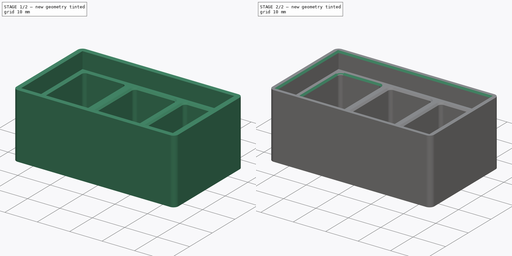
[diagram: build sequence overview — one tinted view per stage of 2, left to right]
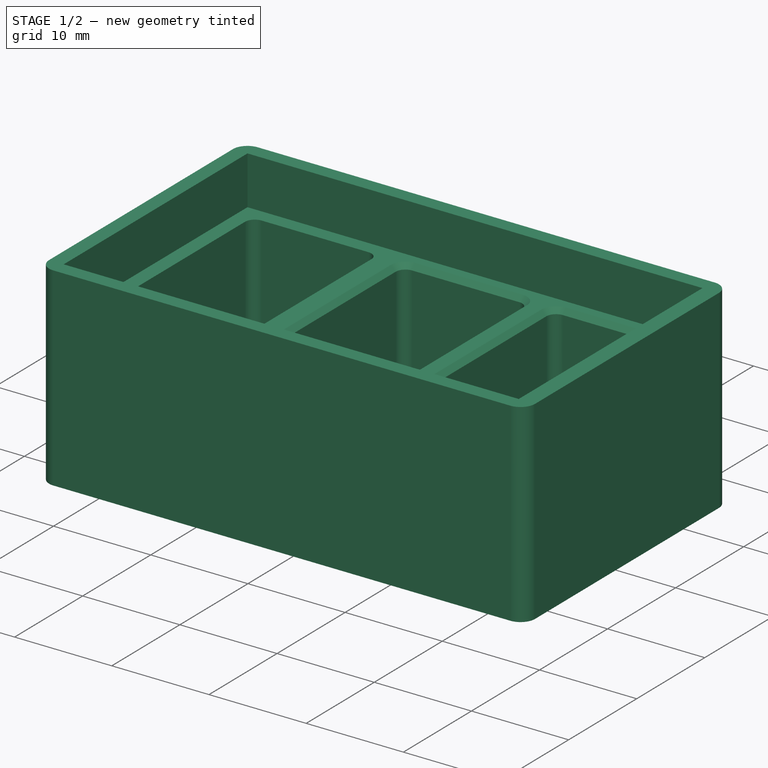
[diagram: stage 1 of 2 — iso view after this stage's code; geometry added in this stage tinted green]
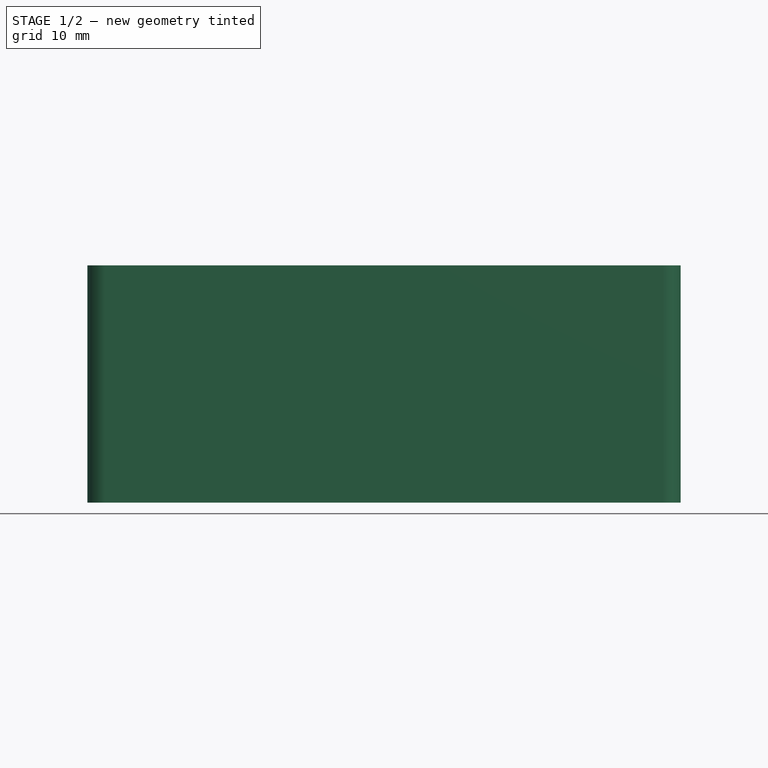
[diagram: stage 1 of 2 — front view after this stage's code; geometry added in this stage tinted green]
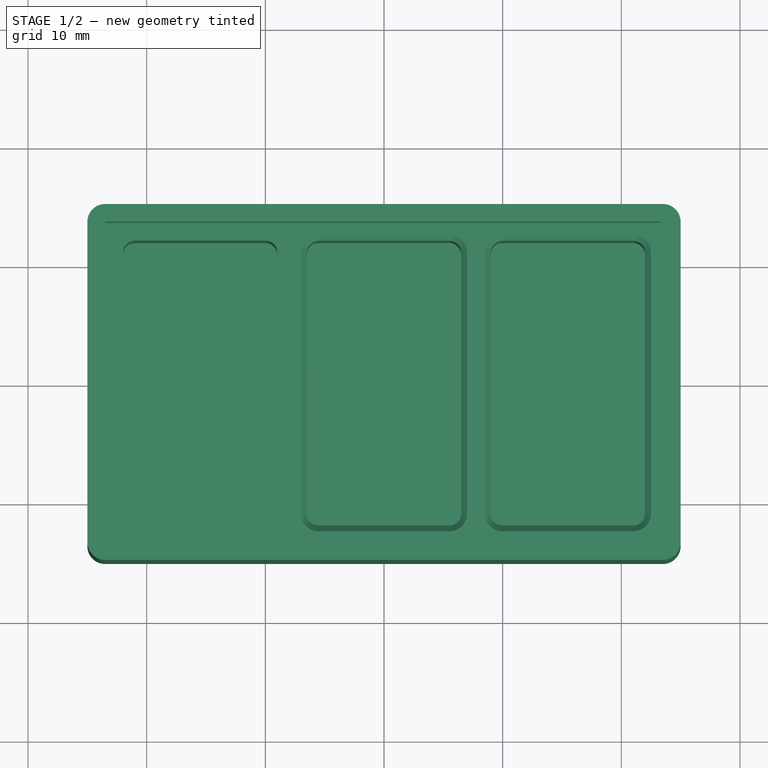
[diagram: stage 1 of 2 — top view after this stage's code; geometry added in this stage tinted green]
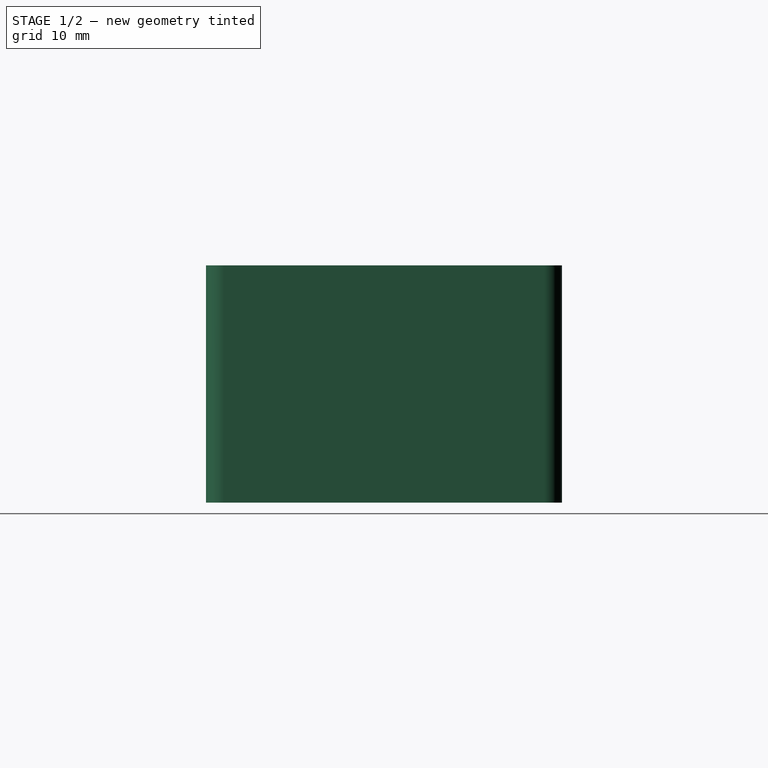
[diagram: stage 1 of 2 — right view after this stage's code; geometry added in this stage tinted green]
FCSTD DOCUMENT  (FreeCAD 0.17R13541 (Git))
Label: pilulesBas
License: All rights reserved
LicenseURL: http://en.wikipedia.org/wiki/All_rights_reserved
objects: Sketcher::SketchObject×5, PartDesign::Chamfer×4, PartDesign::Pad×2, PartDesign::Pocket×2, Part::Fillet×2, PartDesign::Body×1, PartDesign::Mirrored×1, PartDesign::FeatureBase×1
note: 22 computed .brp shape members not serialized (recipe doc carries the construction recipe); baked Part::Feature solids carry a one-line shape summary decoded from their .brp

FEATURE [Sketcher::SketchObject] Sketch
  MapMode = 5
  Support = -> [XY_Plane]
  sketch-geometry (4):
    g0: LineSegment StartX=-25 StartY=15 StartZ=0 EndX=25 EndY=15 EndZ=0
    g1: LineSegment StartX=25 StartY=15 StartZ=0 EndX=25 EndY=-15 EndZ=0
    g2: LineSegment StartX=25 StartY=-15 StartZ=0 EndX=-25 EndY=-15 EndZ=0
    g3: LineSegment StartX=-25 StartY=-15 StartZ=0 EndX=-25 EndY=15 EndZ=0
  constraints (12):
    c: Coincident(g0,g1)
    c: Coincident(g1,g2)
    c: Coincident(g2,g3)
    c: Coincident(g3,g0)
    c: Horizontal(g0)
    c: Horizontal(g2)
    c: Vertical(g1)
    c: Vertical(g3)
    c: DistanceX(g0,g0) = 50
    c: DistanceY(g1,g1) = 30
    c: Symmetric(g0,g0,g-2)
    c: Symmetric(g0,g2,g-1)
FEATURE [Sketcher::SketchObject] Sketch002
  MapMode = 5
  Support = -> [XY_Plane]
FEATURE [PartDesign::Body] Body
  BaseFeature = -> Fillet001
  Group = -> [BaseFeature,Sketch,Pad,Sketch001,Pocket,Sketch002,Sketch003,Pocket001,Sketch004,Pad001,Mirrored,Chamfer,Chamfer001,Chamfer002,Chamfer003]
  Origin = -> Origin
  Tip = -> Chamfer003
FEATURE [PartDesign::Pad] Pad
  BaseFeature = -> BaseFeature
  Length = 20
  Length2 = 100
  Profile = -> Sketch
  Type = 0
FEATURE [Sketcher::SketchObject] Sketch001
  ExternalGeometry = -> [Pad]
  MapMode = 5
  Placement = pos=(0,0,0) rot=(1,0,0;3.14159rad)
  Support = -> [Pad]
  sketch-geometry (12):
    g0: LineSegment StartX=-22 StartY=12 StartZ=0 EndX=22 EndY=12 EndZ=0
    g1: LineSegment StartX=22 StartY=12 StartZ=0 EndX=22 EndY=-12 EndZ=0
    g2: LineSegment StartX=22 StartY=-12 StartZ=0 EndX=-22 EndY=-12 EndZ=0
    g3: LineSegment StartX=-22 StartY=-12 StartZ=0 EndX=-22 EndY=12 EndZ=0
    g4: GeomPoint X=-22 Y=0 Z=0
    g5: GeomPoint X=-25 Y=0 Z=0
    g6: GeomPoint X=0 Y=12 Z=0
    g7: GeomPoint X=22 Y=0 Z=0
    g8: GeomPoint X=0 Y=-12 Z=0
    g9: GeomPoint X=0 Y=15 Z=0
    g10: GeomPoint X=25 Y=0 Z=0
    g11: GeomPoint X=0 Y=-15 Z=0
  constraints (28):
    c: Coincident(g0,g1)
    c: Coincident(g1,g2)
    c: Coincident(g2,g3)
    c: Coincident(g3,g0)
    c: Horizontal(g0)
    c: Horizontal(g2)
    c: Vertical(g1)
    c: Vertical(g3)
    c: PointOnObject(g4,g3)
    c: PointOnObject(g4,g-1)
    c: PointOnObject(g5,g-3)
    c: PointOnObject(g5,g-1)
    c: DistanceX(g5,g4) = 3
    c: PointOnObject(g6,g-2)
    c: PointOnObject(g7,g1)
    c: PointOnObject(g8,g2)
    c: PointOnObject(g9,g-4)
    c: PointOnObject(g10,g-5)
    c: PointOnObject(g11,g-6)
    c: PointOnObject(g9,g-2)
    c: PointOnObject(g6,g0)
    c: PointOnObject(g10,g-1)
    c: PointOnObject(g7,g-1)
    c: PointOnObject(g11,g-2)
    c: PointOnObject(g8,g-2)
    c: DistanceX(g7,g10) = 3
    c: DistanceY(g6,g9) = 3
    c: DistanceY(g11,g8) = 3
FEATURE [PartDesign::Pocket] Pocket
  BaseFeature = -> Pad
  Length = 17
  Length2 = 100
  Profile = -> Sketch001
  Type = 0
FEATURE [Sketcher::SketchObject] Sketch003
  ExternalGeometry = -> [Pocket]
  MapMode = 5
  Placement = pos=(-25,0,0) rot=(0.57735,-0.57735,-0.57735;2.0944rad)
  Support = -> [Pocket]
  sketch-geometry (12):
    g0: LineSegment StartX=-23.5 StartY=13.5 StartZ=0 EndX=23.3158 EndY=13.5 EndZ=0
    g1: LineSegment StartX=23.3158 StartY=13.5 StartZ=0 EndX=23.3158 EndY=-13.5 EndZ=0
    g2: LineSegment StartX=23.3158 StartY=-13.5 StartZ=0 EndX=-23.5 EndY=-13.5 EndZ=0
    g3: LineSegment StartX=-23.5 StartY=-13.5 StartZ=0 EndX=-23.5 EndY=13.5 EndZ=0
    g4: GeomPoint X=0 Y=13.5 Z=0
    g5: GeomPoint X=0 Y=15 Z=0
    g6: GeomPoint X=-23.5 Y=0 Z=0
    g7: GeomPoint X=-25 Y=0 Z=0
    g8: GeomPoint X=0 Y=-13.5 Z=0
    g9: GeomPoint X=0.003964 Y=-15 Z=0
    g10: GeomPoint X=23.5 Y=0 Z=0
    g11: GeomPoint X=25 Y=0 Z=0
  constraints (26):
    c: Coincident(g0,g1)
    c: Coincident(g1,g2)
    c: Coincident(g2,g3)
    c: Coincident(g3,g0)
    c: Horizontal(g0)
    c: Horizontal(g2)
    c: Vertical(g1)
    c: Vertical(g3)
    c: PointOnObject(g4,g0)
    c: PointOnObject(g5,g-2)
    c: PointOnObject(g6,g3)
    c: PointOnObject(g7,g-1)
    c: PointOnObject(g8,g2)
    c: PointOnObject(g11,g-1)
    c: PointOnObject(g4,g-2)
    c: PointOnObject(g5,g-3)
    c: PointOnObject(g11,g-4)
    c: PointOnObject(g10,g-1)
    c: PointOnObject(g8,g-2)
    c: PointOnObject(g9,g-5)
    c: PointOnObject(g6,g-1)
    c: PointOnObject(g7,g-6)
    c: DistanceY(g4,g5) = 1.5
    c: DistanceY(g9,g8) = 1.5
    c: DistanceX(g10,g11) = 1.5
    c: DistanceX(g7,g6) = 1.5
FEATURE [PartDesign::Pocket] Pocket001
  BaseFeature = -> Pocket
  Length = 5
  Length2 = 100
  Profile = -> Sketch003
  Type = 0
FEATURE [Sketcher::SketchObject] Sketch004
  ExternalGeometry = -> [Pocket001]
  MapMode = 5
  Placement = pos=(0,15,0) rot=(0,0.707107,0.707107;3.14159rad)
  Support = -> [Pocket001]
  sketch-geometry (4):
    g0: LineSegment StartX=36.5 StartY=12 StartZ=0 EndX=39 EndY=12 EndZ=0
    g1: LineSegment StartX=39 StartY=12 StartZ=0 EndX=39 EndY=20 EndZ=0
    g2: LineSegment StartX=39 StartY=20 StartZ=0 EndX=36.5 EndY=20 EndZ=0
    g3: LineSegment StartX=36.5 StartY=20 StartZ=0 EndX=36.5 EndY=12 EndZ=0
  constraints (12):
    c: Coincident(g0,g1)
    c: Coincident(g1,g2)
    c: Coincident(g2,g3)
    c: Coincident(g3,g0)
    c: Horizontal(g0)
    c: Horizontal(g2)
    c: Vertical(g1)
    c: Vertical(g3)
    c: DistanceX(g0,g0) = 2.5
    c: PointOnObject(g1,g-3)
    c: PointOnObject(g0,g-5)
    c: DistanceX(g-4,g2) = 13
FEATURE [PartDesign::Pad] Pad001
  BaseFeature = -> Pocket001
  Length = 12
  Length2 = 100
  Profile = -> Sketch004
  Type = 0
FEATURE [PartDesign::Mirrored] Mirrored
  BaseFeature = -> Pad001
  MirrorPlane = -> Sketch004 [V_Axis]
  Originals = -> [Pad001]
FEATURE [Part::Fillet] Fillet
  Base = -> Mirrored
  Edges = 4 edges r=1.5: [Edge1,Edge2,Edge5,Edge8]
FEATURE [Part::Fillet] Fillet001
  Base = -> Fillet
  Edges = 12 edges r=1: [Edge49,Edge51,Edge53,Edge57,Edge58,Edge60,Edge63,Edge65,Edge66,Edge68,Edge69,Edge71]
FEATURE [PartDesign::FeatureBase] BaseFeature
  BaseFeature = -> Fillet001
FEATURE [PartDesign::Chamfer] Chamfer
  Base = -> BaseFeature [Edge24]
  BaseFeature = -> BaseFeature
  Size = 0.5
FEATURE [PartDesign::Chamfer] Chamfer001
  Base = -> Chamfer [Edge33]
  BaseFeature = -> Chamfer
  Size = 0.5
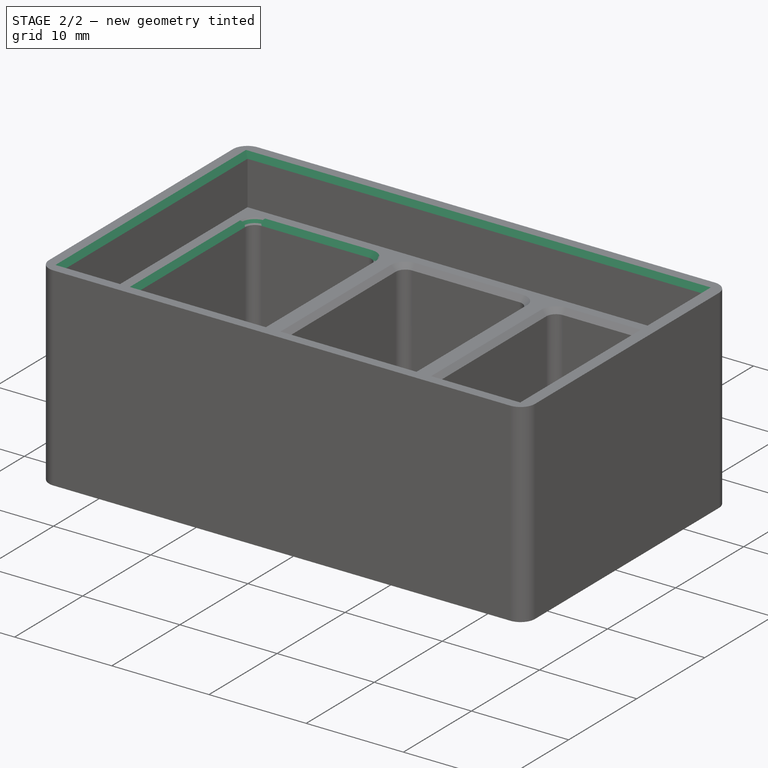
[diagram: stage 2 of 2 — iso view after this stage's code; geometry added in this stage tinted green]
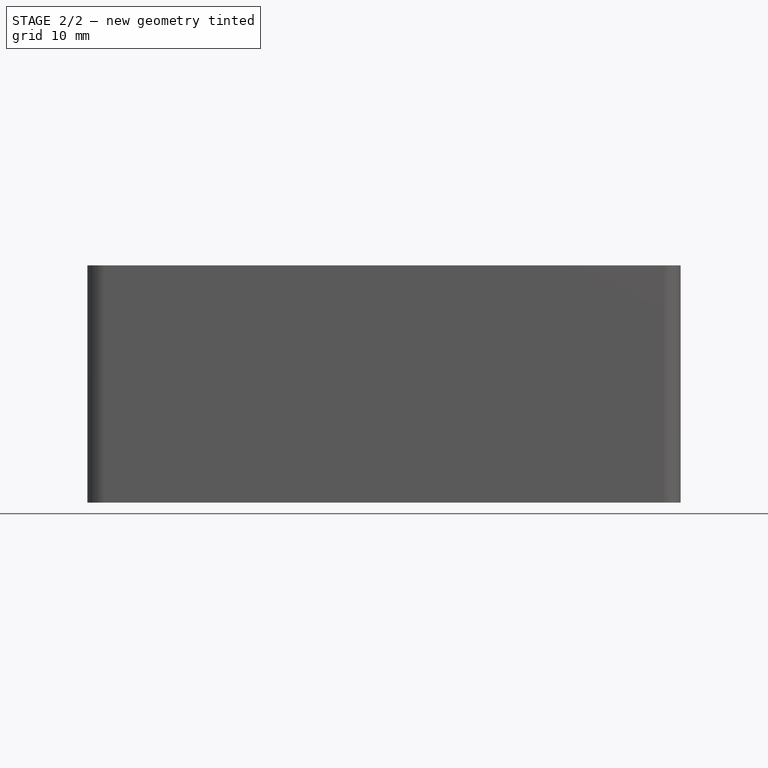
[diagram: stage 2 of 2 — front view after this stage's code; geometry added in this stage tinted green]
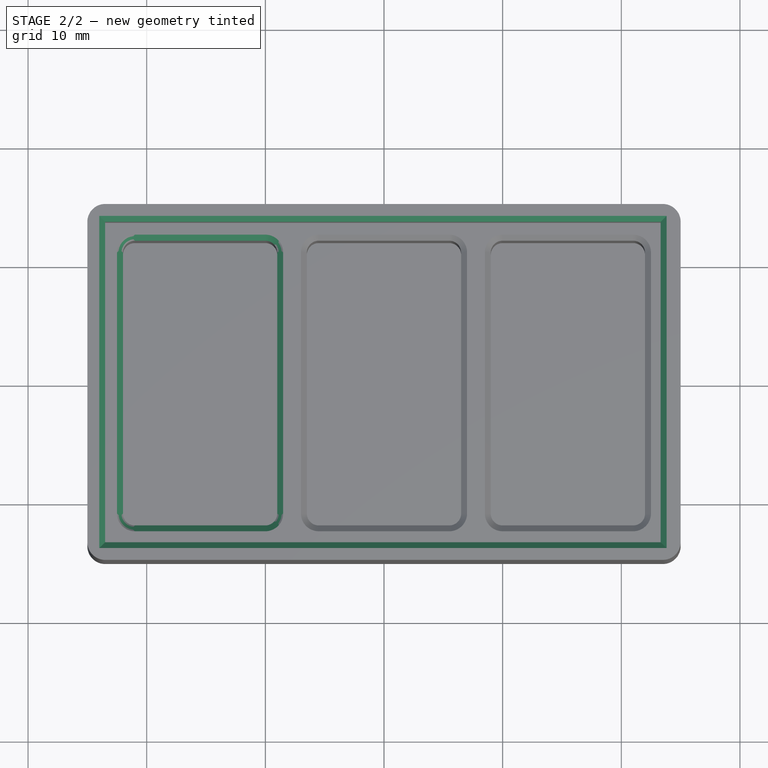
[diagram: stage 2 of 2 — top view after this stage's code; geometry added in this stage tinted green]
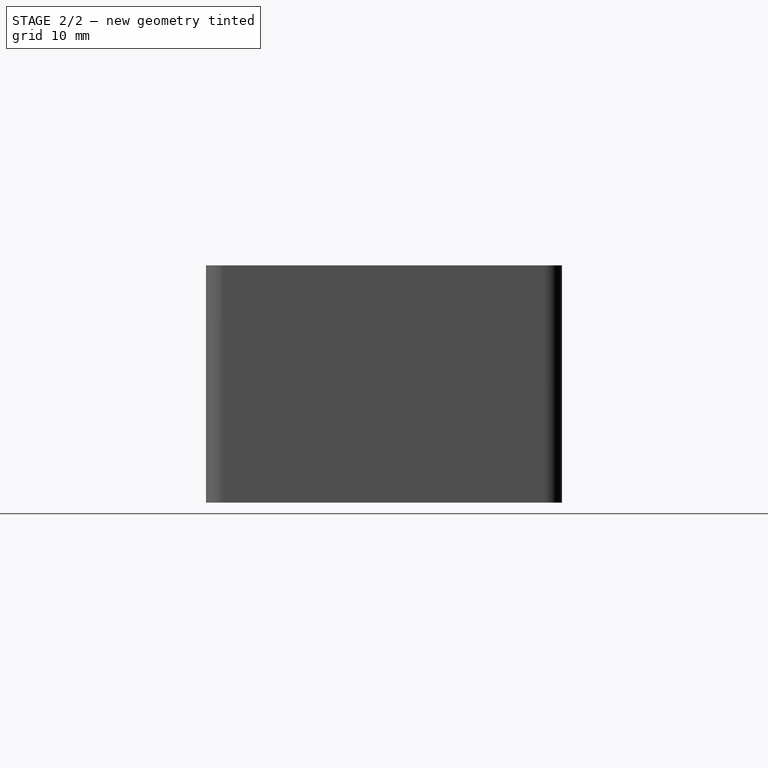
[diagram: stage 2 of 2 — right view after this stage's code; geometry added in this stage tinted green]
FEATURE [PartDesign::Chamfer] Chamfer002
  Base = -> Chamfer001 [Edge53]
  BaseFeature = -> Chamfer001
  Size = 0.5
FEATURE [PartDesign::Chamfer] Chamfer003
  Base = -> Chamfer002 [Edge86,Edge90,Edge92,Edge89]
  BaseFeature = -> Chamfer002
  Size = 0.5
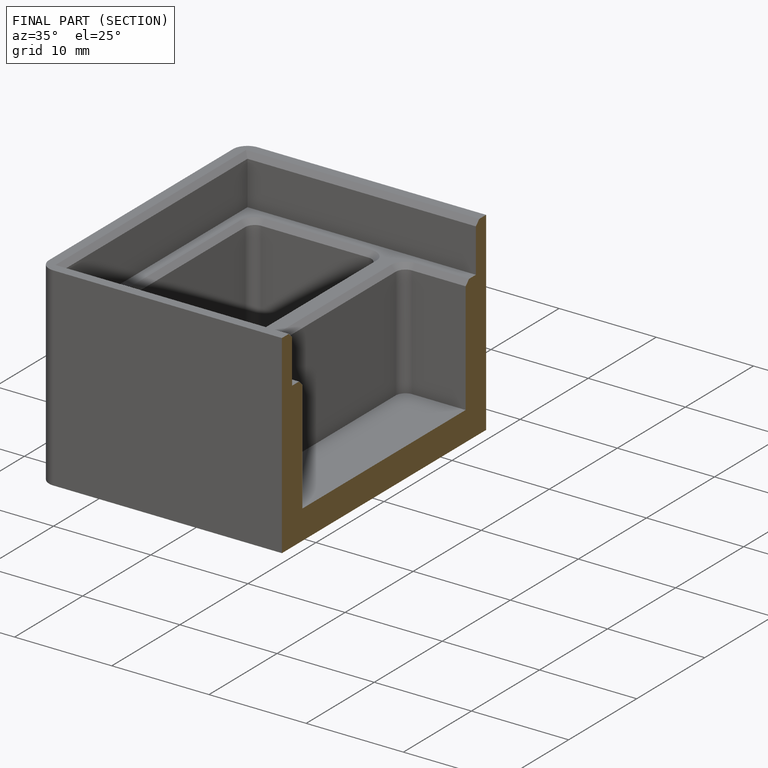
[diagram: finished part — half-section view (interior)]
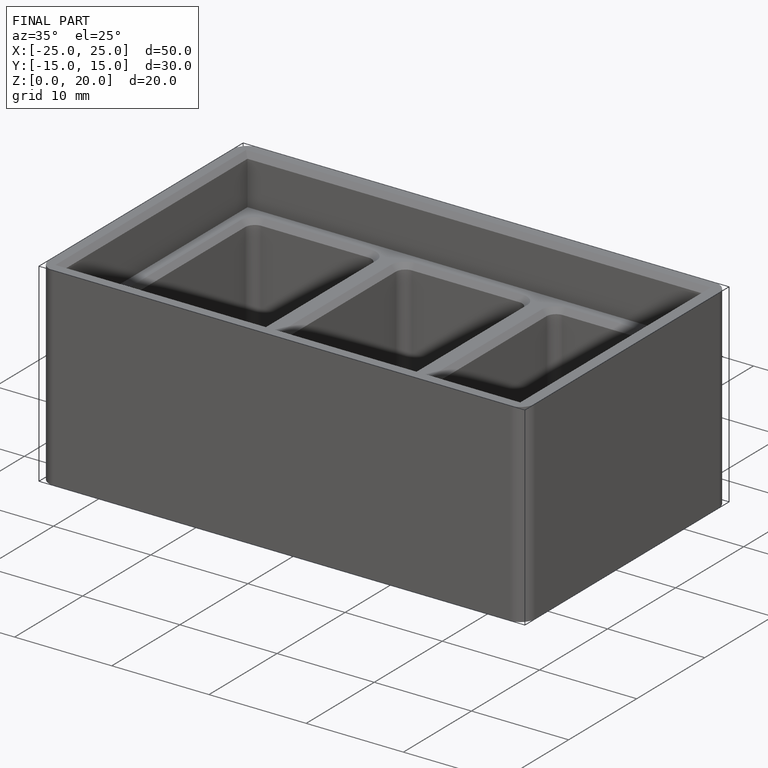
[diagram: finished part — iso view with bounding-box wireframe]
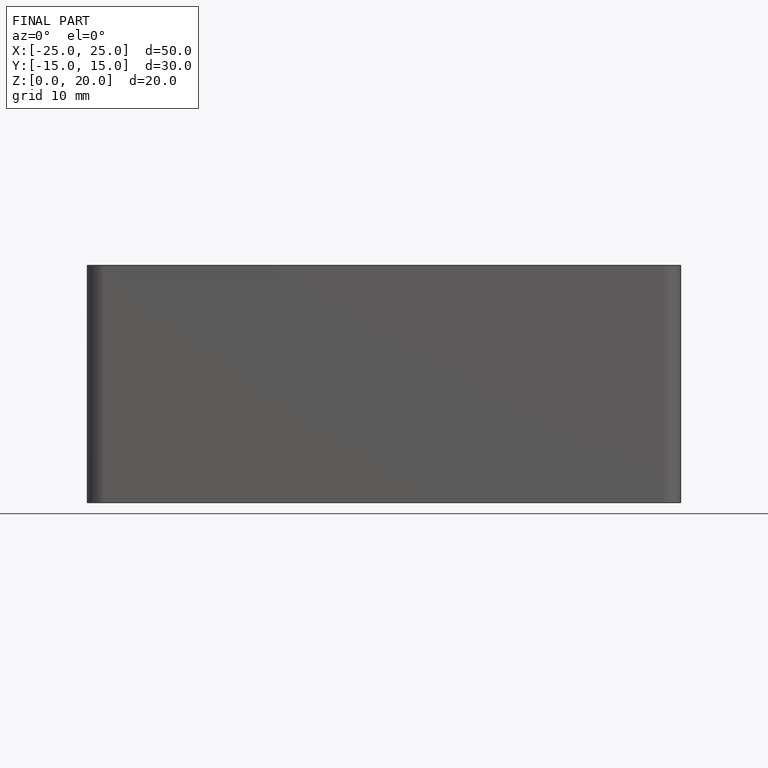
[diagram: finished part — front view with bounding-box wireframe]
